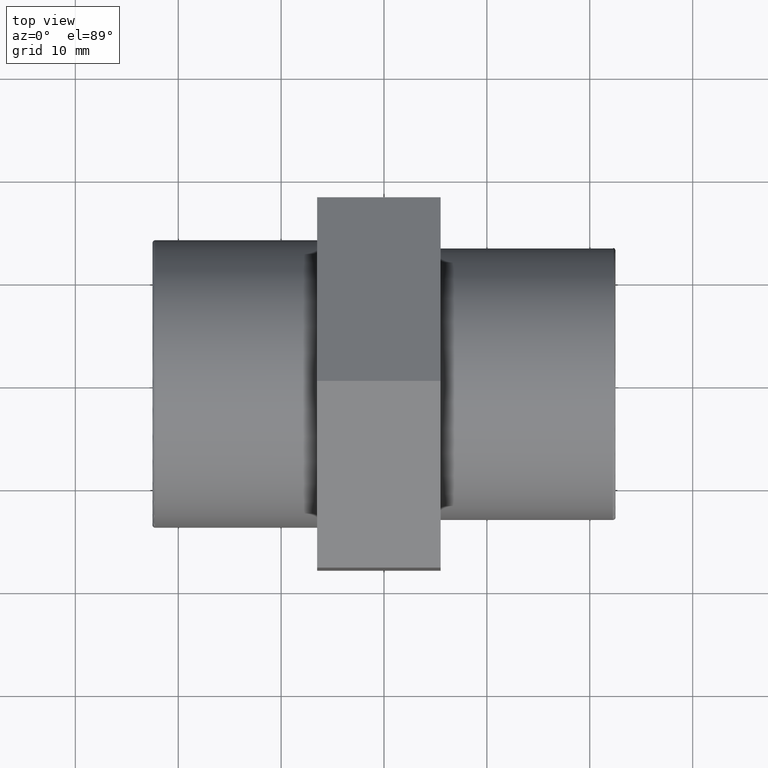
[diagram: clean part render]
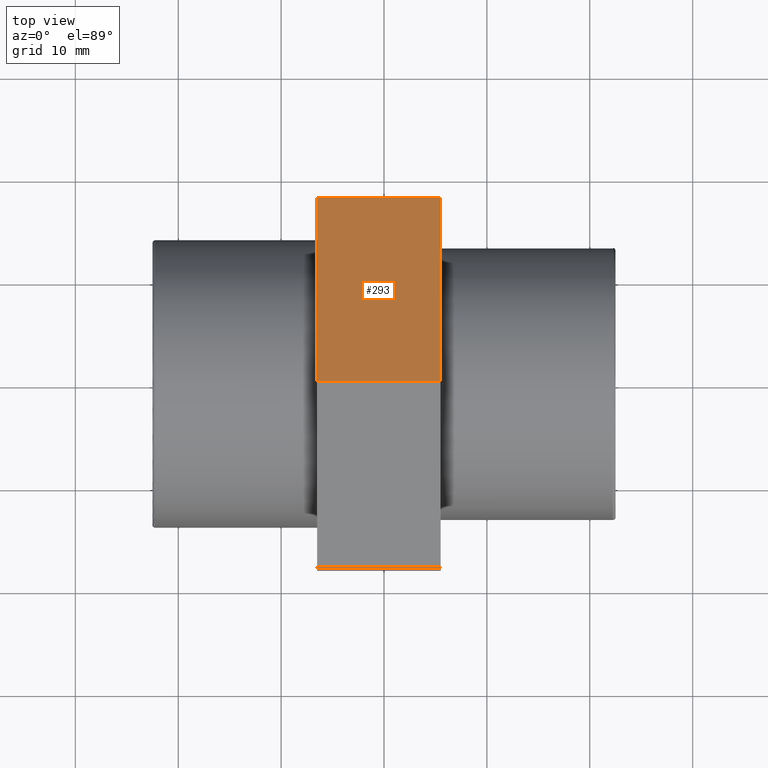
[diagram: same view with one face highlighted and labeled with its STEP entity id]
A machine part, top view. The second image highlights one B-rep face of the part: STEP entity #293.
In plain terms, the highlighted planar face has unit normal (-0, 0.4974, 0.8675).
Its self-contained STEP definition (entity closure, byte-faithful):
#25=LINE('',#487,#43);
#26=LINE('',#489,#44);
#27=LINE('',#491,#45);
#28=LINE('',#492,#46);
#43=VECTOR('',#402,20.7846096908266);
#44=VECTOR('',#403,12.);
#45=VECTOR('',#404,20.7846096908266);
#46=VECTOR('',#405,12.);
#61=PLANE('',#328);
#96=FACE_OUTER_BOUND('',#127,.T.);
#127=EDGE_LOOP('',(#244,#245,#246,#247));
#174=VERTEX_POINT('',#485);
#175=VERTEX_POINT('',#486);
#176=VERTEX_POINT('',#488);
#177=VERTEX_POINT('',#490);
#202=EDGE_CURVE('',#174,#175,#25,.T.);
#203=EDGE_CURVE('',#176,#175,#26,.T.);
#204=EDGE_CURVE('',#176,#177,#27,.T.);
#205=EDGE_CURVE('',#177,#174,#28,.T.);
#244=ORIENTED_EDGE('',*,*,#202,.T.);
#245=ORIENTED_EDGE('',*,*,#203,.F.);
#246=ORIENTED_EDGE('',*,*,#204,.T.);
#247=ORIENTED_EDGE('',*,*,#205,.T.);
#293=ADVANCED_FACE('',(#96),#61,.T.);
#328=AXIS2_PLACEMENT_3D('',#484,#400,#401);
#400=DIRECTION('center_axis',(-6.13622206465706E-17,0.49743157326934,0.867503216083254));
#401=DIRECTION('ref_axis',(-1.77635683940025E-16,0.867503216083254,-0.497431573269341));
#402=DIRECTION('',(1.59357755523959E-16,-0.867503216083254,0.49743157326934));
#403=DIRECTION('',(-1.,-1.23358113847239E-16,0.));
#404=DIRECTION('',(-1.59357755523959E-16,0.867503216083254,-0.49743157326934));
#405=DIRECTION('',(-1.,-1.23358113847239E-16,0.));
#484=CARTESIAN_POINT('Origin',(5.5,-0.0615895570654556,20.7845184386471));
#485=CARTESIAN_POINT('',(-6.5,17.9691261947618,10.4455973403501));
#486=CARTESIAN_POINT('',(-6.5,-0.0615895570654571,20.7845184386471));
#487=CARTESIAN_POINT('',(-6.5,4.44608938089135,18.1997881640729));
#488=CARTESIAN_POINT('',(5.5,-0.0615895570654556,20.7845184386471));
#489=CARTESIAN_POINT('',(5.5,-0.0615895570654556,20.7845184386471));
#490=CARTESIAN_POINT('',(5.5,17.9691261947618,10.4455973403501));
#491=CARTESIAN_POINT('',(5.5,-0.0615895570654556,20.7845184386471));
#492=CARTESIAN_POINT('',(5.5,17.9691261947618,10.4455973403501));